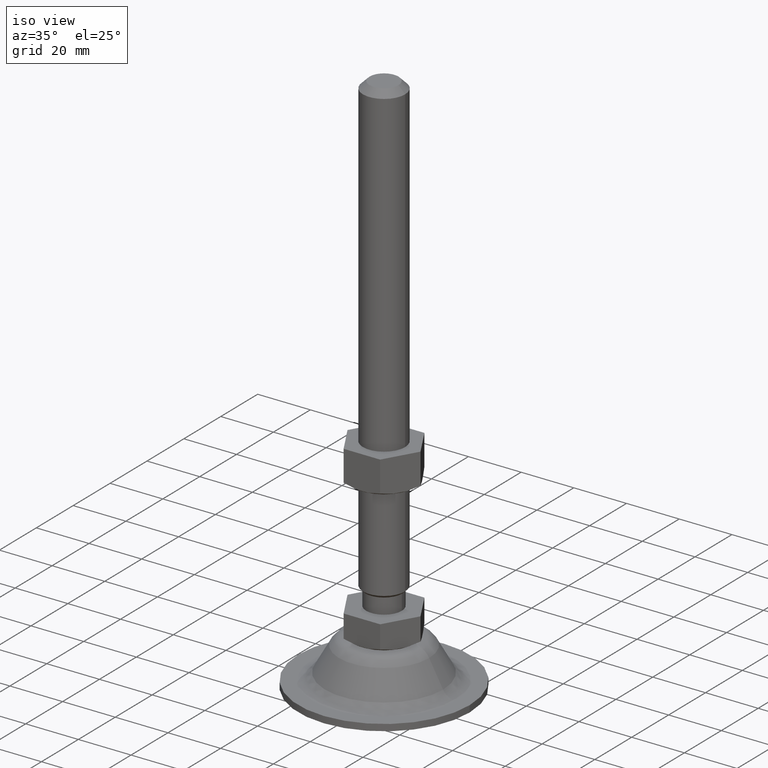
[diagram: clean part render]
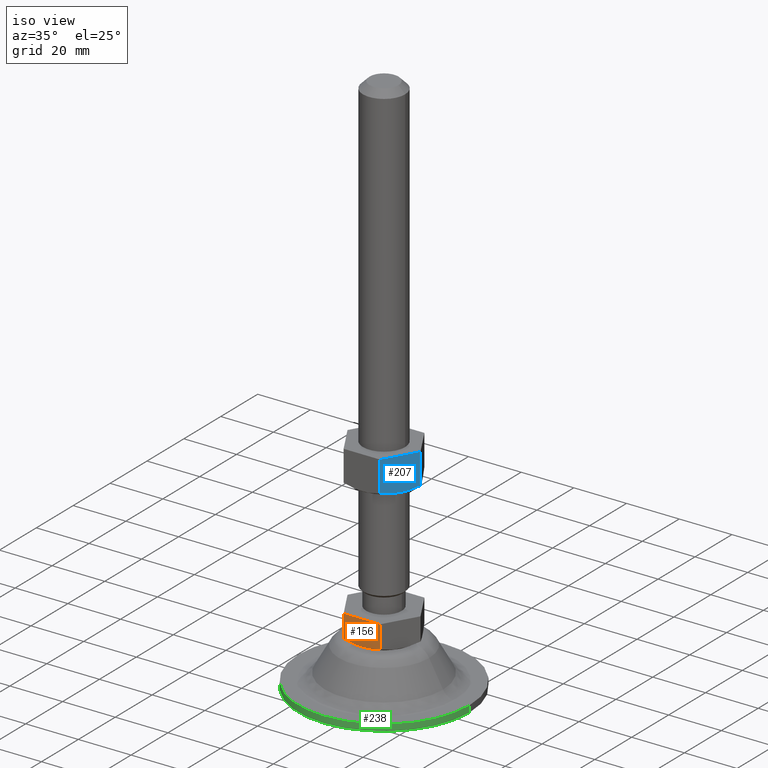
[diagram: same view with three faces highlighted in distinct colors, each labeled with its STEP entity id]
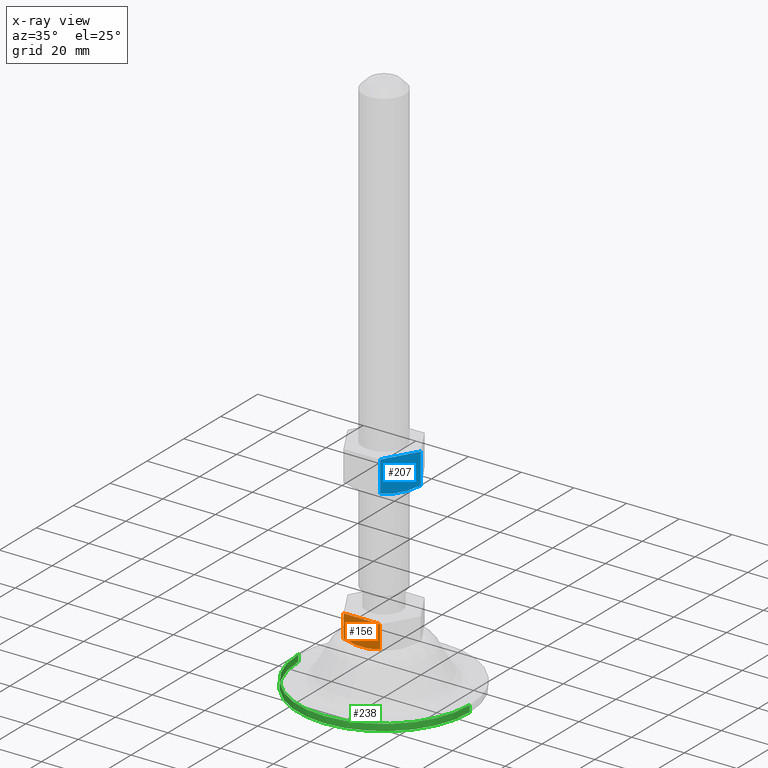
[diagram: x-ray of the same camera — body ghosted, the three highlighted faces saturated]
A machine part, iso view with three faces highlighted in distinct colors.
The next image is the same camera in x-ray (body ghosted, the three faces saturated) — at least one of them is partly hidden behind the body in this view.
Their STEP definitions:

[orange] entity #156 — the highlighted planar face has unit normal (-0, -1, 0).
#156=ADVANCED_FACE('',(#314),#313,.T.);
#313=PLANE('',#1193);
#314=FACE_OUTER_BOUND('',#1194,.T.);
#1190=CARTESIAN_POINT('',(-8.31384387633E+00,-1.20000000000E+01,-1.06826205116E+01));
#1191=DIRECTION('',(-3.68067076691E-14,-1.00000000000E+00,0.00000000000E+00));
#1192=DIRECTION('',(1.00000000000E+00,-3.68067076691E-14,0.00000000000E+00));
#1193=AXIS2_PLACEMENT_3D('',#1190,#1191,#1192);
#1194=EDGE_LOOP('',(#1925,#1926,#1927,#1928));
#1925=ORIENTED_EDGE('',*,*,#2338,.F.);
#1926=ORIENTED_EDGE('',*,*,#2339,.T.);
#1927=ORIENTED_EDGE('',*,*,#2302,.F.);
#1928=ORIENTED_EDGE('',*,*,#2340,.F.);
#2302=EDGE_CURVE('',#2556,#2563,#2564,.T.);
#2338=EDGE_CURVE('',#2814,#2815,#2816,.T.);
#2339=EDGE_CURVE('',#2814,#2563,#2822,.T.);
#2340=EDGE_CURVE('',#2815,#2556,#2828,.T.);
#2556=VERTEX_POINT('',#3930);
#2563=VERTEX_POINT('',#3934);
#2564=LINE('',#3935,#3936);
#2814=VERTEX_POINT('',#4095);
#2815=VERTEX_POINT('',#4096);
#2816=(BOUNDED_CURVE() B_SPLINE_CURVE(3,(#4097,#4098,#4099,#4100,#4101,#4102,#4103,#4104,#4105,#4106,#4107,#4108),.UNSPECIFIED.,.F.,.F.) B_SPLINE_CURVE_WITH_KNOTS((4,2,2,2,2,4),(-2.68404382679E-02,-2.33325205207E-02,-2.15785616471E-02,-1.98246027736E-02,-1.63166850264E-02,-1.28087672792E-02),.UNSPECIFIED.) CURVE() GEOMETRIC_REPRESENTATION_ITEM() RATIONAL_B_SPLINE_CURVE((1.00000000000E+00,1.00000000000E+00,1.00000000000E+00,1.00000000000E+00,1.00000000000E+00,1.00000000000E+00,1.00000000000E+00,1.00000000000E+00,1.00000000000E+00,1.00000000000E+00,1.00000000000E+00,1.00000000000E+00)) REPRESENTATION_ITEM('') );
#2822=LINE('',#4109,#4110);
#2828=LINE('',#4112,#4113);
#3930=CARTESIAN_POINT('',(-6.92820323028E+00,-1.20000000000E+01,-2.99760216649E-11));
#3934=CARTESIAN_POINT('',(6.92820323028E+00,-1.20000000000E+01,-2.99760216649E-11));
#3935=CARTESIAN_POINT('',(-6.92820323028E+00,-1.20000000000E+01,-3.00133251585E-11));
#3936=VECTOR('',#3937,1.38564064606E+01);
#3937=DIRECTION('',(1.00000000000E+00,-3.69208835786E-14,0.00000000000E+00));
#4095=CARTESIAN_POINT('',(6.92820323028E+00,-1.20000000000E+01,-8.63952809571E+00));
#4096=CARTESIAN_POINT('',(-6.92820323028E+00,-1.20000000000E+01,-8.63952809573E+00));
#4097=CARTESIAN_POINT('',(6.92820323028E+00,-1.20000000000E+01,-8.63952809571E+00));
#4098=CARTESIAN_POINT('',(5.80804633655E+00,-1.20000000000E+01,-8.96288953777E+00));
#4099=CARTESIAN_POINT('',(4.67372537454E+00,-1.20000000000E+01,-9.23200858815E+00));
#4100=CARTESIAN_POINT('',(2.94035344557E+00,-1.20000000000E+01,-9.51356008880E+00));
#4101=CARTESIAN_POINT('',(2.35722025786E+00,-1.20000000000E+01,-9.58695090206E+00));
#4102=CARTESIAN_POINT('',(1.17852531273E+00,-1.20000000000E+01,-9.68613636252E+00));
#4103=CARTESIAN_POINT('',(5.88906751517E-01,-1.20000000000E+01,-9.71125045199E+00));
#4104=CARTESIAN_POINT('',(-1.16991691027E+00,-1.20000000000E+01,-9.71147319234E+00));
#4105=CARTESIAN_POINT('',(-2.33357777018E+00,-1.20000000000E+01,-9.61070188598E+00));
#4106=CARTESIAN_POINT('',(-4.64581837588E+00,-1.20000000000E+01,-9.23792383645E+00));
#4107=CARTESIAN_POINT('',(-5.79967374697E+00,-1.20000000000E+01,-8.96530649621E+00));
#4108=CARTESIAN_POINT('',(-6.92820323028E+00,-1.20000000000E+01,-8.63952809573E+00));
#4109=CARTESIAN_POINT('',(6.92820323028E+00,-1.20000000000E+01,-8.63952809571E+00));
#4110=VECTOR('',#4111,8.63952809568E+00);
#4111=DIRECTION('',(0.00000000000E+00,0.00000000000E+00,1.00000000000E+00));
#4112=CARTESIAN_POINT('',(-6.92820323028E+00,-1.20000000000E+01,-8.63952809573E+00));
#4113=VECTOR('',#4114,8.63952809570E+00);
#4114=DIRECTION('',(0.00000000000E+00,0.00000000000E+00,1.00000000000E+00));

[blue] entity #207 — the highlighted planar face has unit normal (0.866, -0.5, 0).
#207=ADVANCED_FACE('',(#826),#825,.T.);
#825=PLANE('',#1510);
#826=FACE_OUTER_BOUND('',#1511,.T.);
#1507=CARTESIAN_POINT('',(6.23538290725E+00,-1.32000000000E+01,4.25171345477E+01));
#1508=DIRECTION('',(8.66025403784E-01,-5.00000000000E-01,0.00000000000E+00));
#1509=DIRECTION('',(5.00000000000E-01,8.66025403784E-01,0.00000000000E+00));
#1510=AXIS2_PLACEMENT_3D('',#1507,#1508,#1509);
#1511=EDGE_LOOP('',(#2157,#2158,#2159,#2160));
#2157=ORIENTED_EDGE('',*,*,#2433,.F.);
#2158=ORIENTED_EDGE('',*,*,#2434,.T.);
#2159=ORIENTED_EDGE('',*,*,#2435,.T.);
#2160=ORIENTED_EDGE('',*,*,#2436,.F.);
#2433=EDGE_CURVE('',#3431,#3432,#3433,.T.);
#2434=EDGE_CURVE('',#3431,#3439,#3440,.T.);
#2435=EDGE_CURVE('',#3439,#3446,#3447,.T.);
#2436=EDGE_CURVE('',#3432,#3446,#3453,.T.);
#3431=VERTEX_POINT('',#4515);
#3432=VERTEX_POINT('',#4516);
#3433=LINE('',#4517,#4518);
#3439=VERTEX_POINT('',#4520);
#3440=(BOUNDED_CURVE() B_SPLINE_CURVE(3,(#4521,#4522,#4523,#4524,#4525,#4526,#4527,#4528,#4529,#4530,#4531,#4532),.UNSPECIFIED.,.F.,.F.) B_SPLINE_CURVE_WITH_KNOTS((4,2,2,2,2,4),(2.38072964508E-07,3.49878844387E-03,6.99733881478E-03,8.74661400024E-03,1.04958891857E-02,1.39944395566E-02),.UNSPECIFIED.) CURVE() GEOMETRIC_REPRESENTATION_ITEM() RATIONAL_B_SPLINE_CURVE((1.00000000000E+00,1.00000000000E+00,1.00000000000E+00,1.00000000000E+00,1.00000000000E+00,1.00000000000E+00,1.00000000000E+00,1.00000000000E+00,1.00000000000E+00,1.00000000000E+00,1.00000000000E+00,1.00000000000E+00)) REPRESENTATION_ITEM('') );
#3446=VERTEX_POINT('',#4533);
#3447=LINE('',#4534,#4535);
#3453=LINE('',#4537,#4538);
#4515=CARTESIAN_POINT('',(6.92820323028E+00,-1.20000000000E+01,4.48604719041E+01));
#4516=CARTESIAN_POINT('',(6.92820323028E+00,-1.20000000000E+01,5.65000000000E+01));
#4517=CARTESIAN_POINT('',(6.92820323028E+00,-1.20000000000E+01,4.48604719041E+01));
#4518=VECTOR('',#4519,1.16395280958E+01);
#4519=DIRECTION('',(0.00000000000E+00,0.00000000000E+00,1.00000000000E+00));
#4520=CARTESIAN_POINT('',(1.38564064606E+01,-4.38509103726E-16,4.48604719042E+01));
#4521=CARTESIAN_POINT('',(6.92820323028E+00,-1.20000000000E+01,4.48604719041E+01));
#4522=CARTESIAN_POINT('',(7.49382534463E+00,-1.10203137600E+01,4.45339098242E+01));
#4523=CARTESIAN_POINT('',(8.06357124720E+00,-1.00334849094E+01,4.42647635439E+01));
#4524=CARTESIAN_POINT('',(9.21494531506E+00,-8.03924652536E+00,4.38919085812E+01));
#4525=CARTESIAN_POINT('',(9.79666181481E+00,-7.03168399218E+00,4.37894297859E+01));
#4526=CARTESIAN_POINT('',(1.06801962537E+01,-5.50135745380E+00,4.37883041343E+01));
#4527=CARTESIAN_POINT('',(1.09760937574E+01,-4.98884794361E+00,4.38133562013E+01));
#4528=CARTESIAN_POINT('',(1.15614101861E+01,-3.97505015059E+00,4.39110461446E+01));
#4529=CARTESIAN_POINT('',(1.18521060531E+01,-3.47155013939E+00,4.39835848699E+01));
#4530=CARTESIAN_POINT('',(1.27190182143E+01,-1.97001423046E+00,4.42636902860E+01));
#4531=CARTESIAN_POINT('',(1.32900792348E+01,-9.80907528727E-01,4.45335027279E+01));
#4532=CARTESIAN_POINT('',(1.38564064606E+01,2.01489132789E-14,4.48604719042E+01));
#4533=CARTESIAN_POINT('',(1.38564064606E+01,0.00000000000E+00,5.65000000000E+01));
#4534=CARTESIAN_POINT('',(1.38564064606E+01,0.00000000000E+00,4.48604719042E+01));
#4535=VECTOR('',#4536,1.16395280958E+01);
#4536=DIRECTION('',(0.00000000000E+00,0.00000000000E+00,1.00000000000E+00));
#4537=CARTESIAN_POINT('',(6.92820323028E+00,-1.20000000000E+01,5.65000000000E+01));
#4538=VECTOR('',#4539,1.38564064606E+01);
#4539=DIRECTION('',(5.00000000000E-01,8.66025403784E-01,0.00000000000E+00));

[green] entity #238 — the highlighted cylindrical surface (partial cylindrical patch) has radius 32.5 mm, axis along (0, 0, 1).
#238=ADVANCED_FACE('',(#1142),#1141,.T.);
#1141=CYLINDRICAL_SURFACE('',#1875,3.25000000000E+01);
#1142=FACE_OUTER_BOUND('',#1876,.T.);
#1872=CARTESIAN_POINT('',(-3.19460013998E-11,0.00000000000E+00,0.00000000000E+00));
#1873=DIRECTION('',(0.00000000000E+00,-0.00000000000E+00,1.00000000000E+00));
#1874=DIRECTION('',(1.00000000000E+00,-0.00000000000E+00,-0.00000000000E+00));
#1875=AXIS2_PLACEMENT_3D('',#1872,#1873,#1874);
#1876=EDGE_LOOP('',(#2289,#2290,#2291,#2292));
#2289=ORIENTED_EDGE('',*,*,#2462,.F.);
#2290=ORIENTED_EDGE('',*,*,#2499,.T.);
#2291=ORIENTED_EDGE('',*,*,#2473,.T.);
#2292=ORIENTED_EDGE('',*,*,#2500,.F.);
#2462=EDGE_CURVE('',#3618,#3617,#3625,.T.);
#2473=EDGE_CURVE('',#3701,#3702,#3703,.T.);
#2499=EDGE_CURVE('',#3618,#3701,#3869,.T.);
#2500=EDGE_CURVE('',#3617,#3702,#3875,.T.);
#3617=VERTEX_POINT('',#4677);
#3618=VERTEX_POINT('',#4678);
#3625=CIRCLE('',#4686,3.25000000000E+01);
#3701=VERTEX_POINT('',#4737);
#3702=VERTEX_POINT('',#4738);
#3703=CIRCLE('',#4742,3.25000000000E+01);
#3869=(BOUNDED_CURVE() B_SPLINE_CURVE(1,(#4837,#4838),.UNSPECIFIED.,.F.,.F.) B_SPLINE_CURVE_WITH_KNOTS((2,2),(8.33333233997E-02,9.16666663280E-01),.UNSPECIFIED.) CURVE() GEOMETRIC_REPRESENTATION_ITEM() RATIONAL_B_SPLINE_CURVE((1.00000000000E+00,1.00000000000E+00)) REPRESENTATION_ITEM('') );
#3875=(BOUNDED_CURVE() B_SPLINE_CURVE(1,(#4839,#4840),.UNSPECIFIED.,.F.,.F.) B_SPLINE_CURVE_WITH_KNOTS((2,2),(8.33333333333E-02,9.16666666667E-01),.UNSPECIFIED.) CURVE() GEOMETRIC_REPRESENTATION_ITEM() RATIONAL_B_SPLINE_CURVE((7.50000000000E-01,7.50000000000E-01)) REPRESENTATION_ITEM('') );
#4677=CARTESIAN_POINT('',(-3.25000000001E+01,0.00000000000E+00,-2.79999999999E+01));
#4678=CARTESIAN_POINT('',(3.25000000000E+01,1.18423789293E-15,-2.79999999999E+01));
#4683=CARTESIAN_POINT('',(-3.19460013998E-11,0.00000000000E+00,-2.79999999999E+01));
#4684=DIRECTION('',(-0.00000000000E+00,0.00000000000E+00,-1.00000000000E+00));
#4685=DIRECTION('',(-1.00000000000E+00,-1.22460635382E-16,0.00000000000E+00));
#4686=AXIS2_PLACEMENT_3D('',#4683,#4684,#4685);
#4737=CARTESIAN_POINT('',(3.25000000000E+01,6.98700356831E-14,-2.55000000000E+01));
#4738=CARTESIAN_POINT('',(-3.25000000001E+01,0.00000000000E+00,-2.55000000000E+01));
#4739=CARTESIAN_POINT('',(-3.19460013998E-11,0.00000000000E+00,-2.55000000000E+01));
#4740=DIRECTION('',(-0.00000000000E+00,0.00000000000E+00,-1.00000000000E+00));
#4741=DIRECTION('',(-1.00000000000E+00,-1.22460635382E-16,0.00000000000E+00));
#4742=AXIS2_PLACEMENT_3D('',#4739,#4740,#4741);
#4837=CARTESIAN_POINT('',(3.25000000000E+01,0.00000000000E+00,-2.80000000297E+01));
#4838=CARTESIAN_POINT('',(3.25000000000E+01,0.00000000000E+00,-2.55000000101E+01));
#4839=CARTESIAN_POINT('',(-3.25000000001E+01,-2.36847578587E-15,-2.79999999999E+01));
#4840=CARTESIAN_POINT('',(-3.25000000001E+01,-2.36847578587E-15,-2.55000000000E+01));